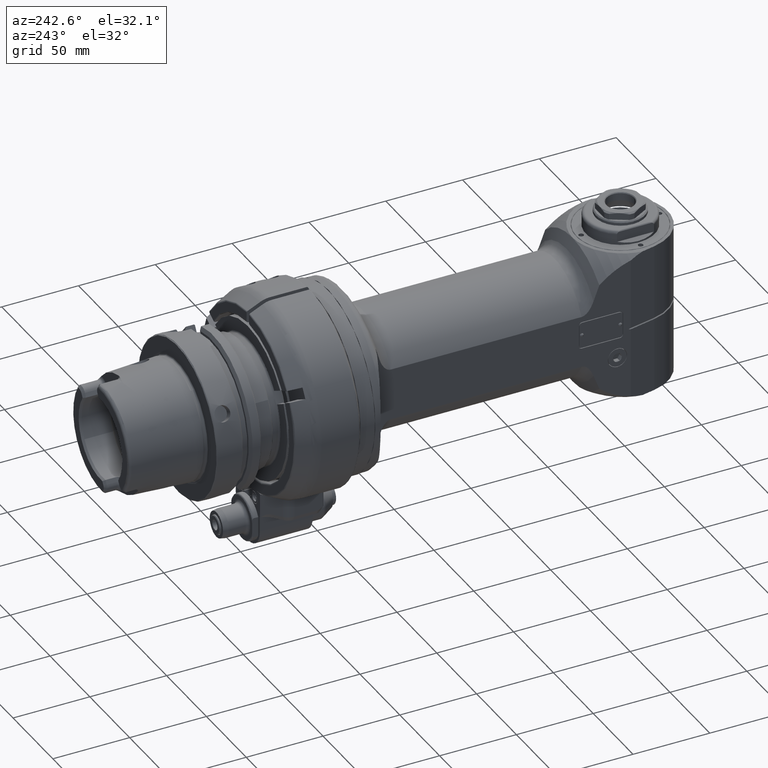
[diagram: clean part render]
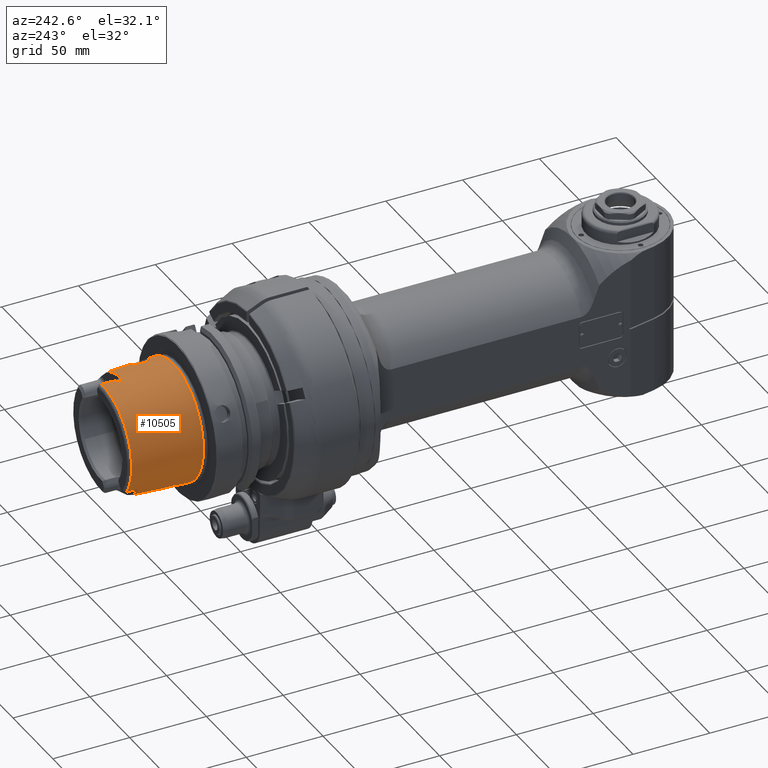
[diagram: same view with one face highlighted and labeled with its STEP entity id]
A machine part, auxiliary view. The second image highlights one B-rep face of the part: STEP entity #10505.
In plain terms, the highlighted conical surface has half-angle 2.868 deg.
Its self-contained STEP definition (entity closure, byte-faithful):
#96=CONICAL_SURFACE('',#11436,36.74017294717,0.0500570901447486);
#289=B_SPLINE_CURVE_WITH_KNOTS('',3,(#31290,#31291,#31292,#31293,#31294,
#31295,#31296,#31297,#31298,#31299,#31300,#31301,#31302,#31303,#31304,#31305,
#31306,#31307),.UNSPECIFIED.,.F.,.F.,(4,2,2,2,2,2,2,2,4),(1.95351747682929,
1.96415168074759,1.97478588466589,1.99605429250249,2.07500752136716,2.15396075023182,
2.37309502639736,2.5922293025629,2.83524321354945),.UNSPECIFIED.);
#290=B_SPLINE_CURVE_WITH_KNOTS('',3,(#31313,#31314,#31315,#31316,#31317,
#31318,#31319,#31320,#31321,#31322,#31323,#31324,#31325,#31326,#31327,#31328,
#31329,#31330,#31331),.UNSPECIFIED.,.F.,.F.,(4,2,2,2,2,2,3,2,4),(0.880850159135021,
1.06197193937717,1.12429506029204,1.14773343290938,1.16113788293459,1.16784010794719,
1.1745423329598,1.1812615850908,1.18523491439442),.UNSPECIFIED.);
#291=B_SPLINE_CURVE_WITH_KNOTS('',3,(#31333,#31334,#31335,#31336,#31337,
#31338,#31339,#31340,#31341,#31342,#31343,#31344),.UNSPECIFIED.,.F.,.F.,
(4,2,2,2,2,4),(-2.21811633364772,-2.19053511535296,-2.02523452835063,-1.9375169475588,
-1.89629131750475,-1.88277978154764),.UNSPECIFIED.);
#292=B_SPLINE_CURVE_WITH_KNOTS('',3,(#31348,#31349,#31350,#31351,#31352,
#31353,#31354,#31355,#31356,#31357),.UNSPECIFIED.,.F.,.F.,(4,2,2,2,4),(-0.968342178380193,
-0.916829721728276,-0.81436746422335,-0.475336799953219,-0.355883563659341),
 .UNSPECIFIED.);
#293=B_SPLINE_CURVE_WITH_KNOTS('',3,(#31359,#31360,#31361,#31362,#31363,
#31364,#31365,#31366,#31367,#31368,#31369,#31370,#31371,#31372,#31373,#31374,
#31375,#31376),.UNSPECIFIED.,.F.,.F.,(4,2,2,2,2,2,2,2,4),(0.576465429523074,
0.580438758827661,0.587158010958199,0.593860235970344,0.60056246098249,
0.613966911006781,0.63740528362252,0.699728404533146,0.880850184762865),
 .UNSPECIFIED.);
#294=B_SPLINE_CURVE_WITH_KNOTS('',3,(#31382,#31383,#31384,#31385,#31386,
#31387,#31388,#31389,#31390,#31391,#31392,#31393,#31394,#31395,#31396,#31397,
#31398,#31399),.UNSPECIFIED.,.F.,.F.,(4,2,2,2,2,2,2,2,4),(1.071791743786,
1.31480565477962,1.53393993093783,1.75307420709605,1.83202743595779,1.91098066481953,
1.93224907265521,1.94288327657306,1.9535174804909),.UNSPECIFIED.);
#295=B_SPLINE_CURVE_WITH_KNOTS('',3,(#31403,#31404,#31405,#31406,#31407,
#31408,#31409,#31410),.UNSPECIFIED.,.F.,.F.,(4,2,2,4),(2.25015551691678,
2.37309502742218,2.59222930313796,2.83524321369891),.UNSPECIFIED.);
#296=B_SPLINE_CURVE_WITH_KNOTS('',3,(#31412,#31413,#31414,#31415,#31416,
#31417,#31418,#31419,#31420,#31421,#31422,#31423,#31424,#31425),
 .UNSPECIFIED.,.F.,.F.,(4,2,2,2,2,2,4),(-1.15970822158214,-0.994679561113807,
-0.847374258154563,-0.791109244943153,-0.759580173348406,-0.73217229522712,
-0.711766951874965),.UNSPECIFIED.);
#297=B_SPLINE_CURVE_WITH_KNOTS('',3,(#31429,#31430,#31431,#31432,#31433,
#31434,#31435,#31436,#31437,#31438,#31439,#31440,#31441,#31442),
 .UNSPECIFIED.,.F.,.F.,(4,2,2,2,2,2,4),(0.375270817781807,0.48788984865174,
0.726748246761294,0.802983637328384,0.853770881530642,0.898553991922293,
0.929951198099741),.UNSPECIFIED.);
#298=B_SPLINE_CURVE_WITH_KNOTS('',3,(#31444,#31445,#31446,#31447,#31448,
#31449,#31450,#31451),.UNSPECIFIED.,.F.,.F.,(4,2,2,4),(1.07179174373337,
1.31480565427248,1.53393992998456,1.65687944051733),.UNSPECIFIED.);
#299=B_SPLINE_CURVE_WITH_KNOTS('',3,(#31454,#31455,#31456,#31457,#31458,
#31459,#31460,#31461,#31462,#31463,#31464,#31465,#31466,#31467,#31468,#31469,
#31470,#31471,#31472,#31473,#31474,#31475,#31476,#31477,#31478,#31479,#31480,
#31481,#31482,#31483,#31484,#31485,#31486,#31487),.UNSPECIFIED.,.T.,.F.,
(4,2,2,2,2,2,2,2,2,2,2,2,2,2,2,2,4),(-3.62526048863598,-3.4004530432976,
-3.17564559795922,-2.95051015909361,-2.72537472022801,-2.5002392813624,
-2.27510384249679,-2.05029639715841,-1.82548895182003,-1.59713724610656,
-1.36878554039308,-1.14076500815155,-0.912744475910015,-0.684723943668482,
-0.456703411426949,-0.228351705713474,0.),.UNSPECIFIED.);
#300=B_SPLINE_CURVE_WITH_KNOTS('',3,(#31490,#31491,#31492,#31493,#31494,
#31495,#31496,#31497,#31498,#31499,#31500,#31501,#31502,#31503,#31504,#31505,
#31506,#31507),.UNSPECIFIED.,.F.,.F.,(4,2,2,2,2,2,2,2,4),(-3.62042001085126,
-3.3969087829225,-3.16855707720903,-2.9405365449675,-2.71251601272596,-2.48449548048443,
-2.2564749482429,-2.02812324252942,-1.80461203294813),.UNSPECIFIED.);
#301=B_SPLINE_CURVE_WITH_KNOTS('',3,(#31508,#31509,#31510,#31511,#31512,
#31513,#31514,#31515,#31516,#31517,#31518,#31519,#31520,#31521,#31522,#31523,
#31524,#31525,#31526,#31527,#31528,#31529,#31530),.UNSPECIFIED.,.F.,.F.,
(4,2,2,2,2,2,2,2,2,3,4),(-1.80461203294813,-1.79977153681595,-1.57496409147757,
-1.35015664613919,-1.12502120727358,-0.899885768407974,-0.674750329542366,
-0.449614890676758,-0.224807445338379,0.,0.00484047778471908),
 .UNSPECIFIED.);
#637=FACE_BOUND('',#2194,.T.);
#638=FACE_BOUND('',#2195,.T.);
#931=CIRCLE('',#11434,37.88261919706);
#932=CIRCLE('',#11435,37.88261919706);
#933=CIRCLE('',#11437,35.59772669727);
#934=CIRCLE('',#11438,36.25402645881);
#935=CIRCLE('',#11439,35.59772669727);
#936=CIRCLE('',#11440,36.00353175058);
#937=CIRCLE('',#11441,35.59772669727);
#1519=FACE_OUTER_BOUND('',#2193,.T.);
#2193=EDGE_LOOP('',(#8163,#8164,#8165,#8166,#8167,#8168,#8169,#8170,#8171,
#8172,#8173,#8174,#8175,#8176,#8177,#8178,#8179,#8180,#8181,#8182,#8183));
#2194=EDGE_LOOP('',(#8184));
#2195=EDGE_LOOP('',(#8185,#8186));
#2683=(
BOUNDED_CURVE()
B_SPLINE_CURVE(2,(#31309,#31310,#31311),.UNSPECIFIED.,.F.,.F.)
B_SPLINE_CURVE_WITH_KNOTS((3,3),(2.97141344392928,3.96265835988476),
 .UNSPECIFIED.)
CURVE()
GEOMETRIC_REPRESENTATION_ITEM()
RATIONAL_B_SPLINE_CURVE((1.02464110441185,1.02628589834782,1.02628589827356))
REPRESENTATION_ITEM('')
);
#2684=(
BOUNDED_CURVE()
B_SPLINE_CURVE(2,(#31378,#31379,#31380),.UNSPECIFIED.,.F.,.F.)
B_SPLINE_CURVE_WITH_KNOTS((3,3),(3.9626582701882,4.95390318622074),
 .UNSPECIFIED.)
CURVE()
GEOMETRIC_REPRESENTATION_ITEM()
RATIONAL_B_SPLINE_CURVE((1.02628589827313,1.02628589834765,1.02464110441169))
REPRESENTATION_ITEM('')
);
#3130=LINE('',#31286,#3797);
#3797=VECTOR('',#13490,36.74017294717);
#4611=VERTEX_POINT('',#31279);
#4612=VERTEX_POINT('',#31280);
#4613=VERTEX_POINT('',#31285);
#4614=VERTEX_POINT('',#31287);
#4615=VERTEX_POINT('',#31289);
#4616=VERTEX_POINT('',#31308);
#4617=VERTEX_POINT('',#31312);
#4618=VERTEX_POINT('',#31332);
#4619=VERTEX_POINT('',#31345);
#4620=VERTEX_POINT('',#31347);
#4621=VERTEX_POINT('',#31358);
#4622=VERTEX_POINT('',#31377);
#4623=VERTEX_POINT('',#31381);
#4624=VERTEX_POINT('',#31400);
#4625=VERTEX_POINT('',#31402);
#4626=VERTEX_POINT('',#31411);
#4627=VERTEX_POINT('',#31426);
#4628=VERTEX_POINT('',#31428);
#4629=VERTEX_POINT('',#31443);
#4630=VERTEX_POINT('',#31453);
#4631=VERTEX_POINT('',#31488);
#4632=VERTEX_POINT('',#31489);
#5895=EDGE_CURVE('',#4611,#4612,#931,.T.);
#5897=EDGE_CURVE('',#4612,#4611,#932,.T.);
#5898=EDGE_CURVE('',#4611,#4613,#3130,.T.);
#5899=EDGE_CURVE('',#4614,#4613,#933,.T.);
#5900=EDGE_CURVE('',#4615,#4614,#289,.T.);
#5901=EDGE_CURVE('',#4616,#4615,#2683,.T.);
#5902=EDGE_CURVE('',#4617,#4616,#290,.T.);
#5903=EDGE_CURVE('',#4618,#4617,#291,.T.);
#5904=EDGE_CURVE('',#4619,#4618,#934,.T.);
#5905=EDGE_CURVE('',#4620,#4619,#292,.T.);
#5906=EDGE_CURVE('',#4621,#4620,#293,.T.);
#5907=EDGE_CURVE('',#4622,#4621,#2684,.T.);
#5908=EDGE_CURVE('',#4623,#4622,#294,.T.);
#5909=EDGE_CURVE('',#4624,#4623,#935,.T.);
#5910=EDGE_CURVE('',#4625,#4624,#295,.T.);
#5911=EDGE_CURVE('',#4626,#4625,#296,.T.);
#5912=EDGE_CURVE('',#4627,#4626,#936,.T.);
#5913=EDGE_CURVE('',#4627,#4628,#297,.T.);
#5914=EDGE_CURVE('',#4629,#4628,#298,.T.);
#5915=EDGE_CURVE('',#4613,#4629,#937,.T.);
#5916=EDGE_CURVE('',#4630,#4630,#299,.T.);
#5917=EDGE_CURVE('',#4631,#4632,#300,.T.);
#5918=EDGE_CURVE('',#4632,#4631,#301,.T.);
#8163=ORIENTED_EDGE('',*,*,#5895,.F.);
#8164=ORIENTED_EDGE('',*,*,#5898,.T.);
#8165=ORIENTED_EDGE('',*,*,#5899,.F.);
#8166=ORIENTED_EDGE('',*,*,#5900,.F.);
#8167=ORIENTED_EDGE('',*,*,#5901,.F.);
#8168=ORIENTED_EDGE('',*,*,#5902,.F.);
#8169=ORIENTED_EDGE('',*,*,#5903,.F.);
#8170=ORIENTED_EDGE('',*,*,#5904,.F.);
#8171=ORIENTED_EDGE('',*,*,#5905,.F.);
#8172=ORIENTED_EDGE('',*,*,#5906,.F.);
#8173=ORIENTED_EDGE('',*,*,#5907,.F.);
#8174=ORIENTED_EDGE('',*,*,#5908,.F.);
#8175=ORIENTED_EDGE('',*,*,#5909,.F.);
#8176=ORIENTED_EDGE('',*,*,#5910,.F.);
#8177=ORIENTED_EDGE('',*,*,#5911,.F.);
#8178=ORIENTED_EDGE('',*,*,#5912,.F.);
#8179=ORIENTED_EDGE('',*,*,#5913,.T.);
#8180=ORIENTED_EDGE('',*,*,#5914,.F.);
#8181=ORIENTED_EDGE('',*,*,#5915,.F.);
#8182=ORIENTED_EDGE('',*,*,#5898,.F.);
#8183=ORIENTED_EDGE('',*,*,#5897,.F.);
#8184=ORIENTED_EDGE('',*,*,#5916,.T.);
#8185=ORIENTED_EDGE('',*,*,#5917,.T.);
#8186=ORIENTED_EDGE('',*,*,#5918,.T.);
#10505=ADVANCED_FACE('',(#1519,#637,#638),#96,.T.);
#11434=AXIS2_PLACEMENT_3D('',#31281,#13483,#13484);
#11435=AXIS2_PLACEMENT_3D('',#31283,#13486,#13487);
#11436=AXIS2_PLACEMENT_3D('',#31284,#13488,#13489);
#11437=AXIS2_PLACEMENT_3D('',#31288,#13491,#13492);
#11438=AXIS2_PLACEMENT_3D('',#31346,#13493,#13494);
#11439=AXIS2_PLACEMENT_3D('',#31401,#13495,#13496);
#11440=AXIS2_PLACEMENT_3D('',#31427,#13497,#13498);
#11441=AXIS2_PLACEMENT_3D('',#31452,#13499,#13500);
#13483=DIRECTION('center_axis',(-1.54070515829829E-13,-1.,8.86354511194037E-14));
#13484=DIRECTION('ref_axis',(0.565286898981988,-1.60208928738564E-13,-0.824894370110093));
#13486=DIRECTION('center_axis',(-1.54070515829829E-13,-1.,8.86354511194037E-14));
#13487=DIRECTION('ref_axis',(0.565286898981988,-1.60208928738564E-13,-0.824894370110093));
#13488=DIRECTION('center_axis',(-1.54070515829829E-13,-1.,8.86354511194037E-14));
#13489=DIRECTION('ref_axis',(-0.565286898981988,1.60208928738564E-13,0.824894370110093));
#13490=DIRECTION('',(-0.0282848015434069,0.998747405449362,0.0412745697714427));
#13491=DIRECTION('center_axis',(1.54070515829829E-13,1.,-8.86354511194037E-14));
#13492=DIRECTION('ref_axis',(0.819766675702152,-7.55405600929713E-14,0.572697649207889));
#13493=DIRECTION('center_axis',(1.54070515829829E-13,1.,-8.86354511194037E-14));
#13494=DIRECTION('ref_axis',(0.162272191643253,6.24593196017472E-14,0.986746034103657));
#13495=DIRECTION('center_axis',(1.54070515829829E-13,1.,-8.86354511194037E-14));
#13496=DIRECTION('ref_axis',(-0.819766675701744,7.55405600928566E-14,-0.572697649208474));
#13497=DIRECTION('center_axis',(1.54070515829829E-13,1.,-8.86354511194037E-14));
#13498=DIRECTION('ref_axis',(-0.170475599937021,-6.10727327172281E-14,-0.985361897896459));
#13499=DIRECTION('center_axis',(1.54070515829829E-13,1.,-8.86354511194037E-14));
#13500=DIRECTION('ref_axis',(0.819766675702152,-7.55405600929713E-14,0.572697649207889));
#31279=CARTESIAN_POINT('',(21.4145483312309,90.9924719713397,-31.2491593006898));
#31280=CARTESIAN_POINT('',(-21.4145483312134,90.9924719713555,31.2491593006758));
#31281=CARTESIAN_POINT('Origin',(9.4087411738578E-12,90.99247197135,-5.42941796712916E-12));
#31283=CARTESIAN_POINT('Origin',(9.4087411738578E-12,90.99247197135,-5.42941796712916E-12));
#31284=CARTESIAN_POINT('Origin',(1.29221344161242E-11,113.79627205827,-7.45064307507984E-12));
#31285=CARTESIAN_POINT('',(20.1229285355274,136.600072145196,-29.3643643413095));
#31286=CARTESIAN_POINT('',(20.7687384333806,113.796272058264,-30.3067618209991));
#31287=CARTESIAN_POINT('',(29.1818300771966,136.600072145196,20.3867343966669));
#31288=CARTESIAN_POINT('Origin',(1.6424848596736E-11,136.6000721452,-9.46570262389392E-12));
#31289=CARTESIAN_POINT('',(30.7431082032181,127.809422211486,18.8044685276452));
#31290=CARTESIAN_POINT('Ctrl Pts',(30.7431081936557,127.809422211538,18.8044685432964));
#31291=CARTESIAN_POINT('Ctrl Pts',(30.7246119918812,127.809422209239,18.8347076716088));
#31292=CARTESIAN_POINT('Ctrl Pts',(30.7061778234111,127.81616484918,18.8640966004879));
#31293=CARTESIAN_POINT('Ctrl Pts',(30.6702101398432,127.840529313851,18.9201939447219));
#31294=CARTESIAN_POINT('Ctrl Pts',(30.6526824725821,127.85819228069,18.9468882328889));
#31295=CARTESIAN_POINT('Ctrl Pts',(30.6023448355023,127.921685828009,19.0221340893101));
#31296=CARTESIAN_POINT('Ctrl Pts',(30.5718253650961,127.978559664047,19.0657151168882));
#31297=CARTESIAN_POINT('Ctrl Pts',(30.4508192300694,128.240236572277,19.2344957243158));
#31298=CARTESIAN_POINT('Ctrl Pts',(30.3794080553848,128.499440397578,19.3224801607254));
#31299=CARTESIAN_POINT('Ctrl Pts',(30.2472614813869,129.032137222438,19.479446751041));
#31300=CARTESIAN_POINT('Ctrl Pts',(30.1896477370089,129.307964173428,19.5430662345673));
#31301=CARTESIAN_POINT('Ctrl Pts',(30.0033426579084,130.263520190317,19.7417966698982));
#31302=CARTESIAN_POINT('Ctrl Pts',(29.8896360837378,130.990974314662,19.8472214170619));
#31303=CARTESIAN_POINT('Ctrl Pts',(29.6752091785505,132.476695914275,20.0336943061763));
#31304=CARTESIAN_POINT('Ctrl Pts',(29.5761550135734,133.235552124774,20.1119530253636));
#31305=CARTESIAN_POINT('Ctrl Pts',(29.3765495633445,134.859161011638,20.2595349502501));
#31306=CARTESIAN_POINT('Ctrl Pts',(29.2772373006642,135.726206197612,20.3266120906752));
#31307=CARTESIAN_POINT('Ctrl Pts',(29.1818300772039,136.600072145198,20.3867343966528));
#31308=CARTESIAN_POINT('',(32.2511355636846,125.499999769316,16.3390200293981));
#31309=CARTESIAN_POINT('Ctrl Pts',(32.2511355637039,125.499999769345,16.3390200293656));
#31310=CARTESIAN_POINT('Ctrl Pts',(31.4959134511014,127.809422315507,17.5737199242038));
#31311=CARTESIAN_POINT('Ctrl Pts',(30.743108203186,127.809422211409,18.8044685277279));
#31312=CARTESIAN_POINT('',(30.8747292113536,124.729703023806,18.8849764257005));
#31313=CARTESIAN_POINT('Ctrl Pts',(30.8747292783561,124.72970302379,18.8849763161548));
#31314=CARTESIAN_POINT('Ctrl Pts',(31.189756609465,124.729703017958,18.3699434502233));
#31315=CARTESIAN_POINT('Ctrl Pts',(31.5484471054144,124.773514088108,17.7420077345428));
#31316=CARTESIAN_POINT('Ctrl Pts',(31.9204847454606,124.929572160144,17.0379207494847));
#31317=CARTESIAN_POINT('Ctrl Pts',(32.0310053395963,124.989438499556,16.8226349932377));
#31318=CARTESIAN_POINT('Ctrl Pts',(32.147731746669,125.098596759152,16.5856075458085));
#31319=CARTESIAN_POINT('Ctrl Pts',(32.1843829448975,125.139846228574,16.5098125118391));
#31320=CARTESIAN_POINT('Ctrl Pts',(32.2270215998544,125.210144190517,16.4185859188438));
#31321=CARTESIAN_POINT('Ctrl Pts',(32.2426746268878,125.241559315834,16.3843343988));
#31322=CARTESIAN_POINT('Ctrl Pts',(32.2593870210592,125.296112672697,16.3453408947717));
#31323=CARTESIAN_POINT('Ctrl Pts',(32.2638557178817,125.315515882415,16.3343621513942));
#31324=CARTESIAN_POINT('Ctrl Pts',(32.2694548125403,125.356433783244,16.3187560832275));
#31325=CARTESIAN_POINT('Ctrl Pts',(32.270594339227,125.377940962666,16.3141123451452));
#31326=CARTESIAN_POINT('Ctrl Pts',(32.2695967283712,125.400253727865,16.3136080118377));
#31327=CARTESIAN_POINT('Ctrl Pts',(32.2685965830678,125.42262317903,16.3131023972627));
#31328=CARTESIAN_POINT('Ctrl Pts',(32.2655226345067,125.444184722424,16.316790070759));
#31329=CARTESIAN_POINT('Ctrl Pts',(32.2581441686728,125.47684805453,16.3277477959236));
#31330=CARTESIAN_POINT('Ctrl Pts',(32.2548555119101,125.488624397515,16.3329383487943));
#31331=CARTESIAN_POINT('Ctrl Pts',(32.2511355636779,125.499999769301,16.3390200294218));
#31332=CARTESIAN_POINT('',(28.0392641915388,123.499999769226,22.9816034704772));
#31333=CARTESIAN_POINT('Ctrl Pts',(28.0392641915367,123.499999769227,22.9816034704755));
#31334=CARTESIAN_POINT('Ctrl Pts',(28.1438281840088,123.499999769227,22.8540276286239));
#31335=CARTESIAN_POINT('Ctrl Pts',(28.2525006270047,123.507882139708,22.7190461898865));
#31336=CARTESIAN_POINT('Ctrl Pts',(29.0395650999302,123.626826182294,21.7206019382224));
#31337=CARTESIAN_POINT('Ctrl Pts',(29.6018607503996,124.017364097836,20.9005947173252));
#31338=CARTESIAN_POINT('Ctrl Pts',(30.2611275175359,124.479220507163,19.8806717603782));
#31339=CARTESIAN_POINT('Ctrl Pts',(30.4284714496417,124.593921238398,19.6106749184146));
#31340=CARTESIAN_POINT('Ctrl Pts',(30.6558452723224,124.69353783573,19.2421595981162));
#31341=CARTESIAN_POINT('Ctrl Pts',(30.7284004701681,124.716189781852,19.1239571383401));
#31342=CARTESIAN_POINT('Ctrl Pts',(30.8266958083141,124.728227310286,18.9634799925679));
#31343=CARTESIAN_POINT('Ctrl Pts',(30.8507460482472,124.729703024248,18.9241860942189));
#31344=CARTESIAN_POINT('Ctrl Pts',(30.8747292113511,124.729703023803,18.8849764256989));
#31345=CARTESIAN_POINT('',(5.88302032938107,123.49999976922,35.773516828514));
#31346=CARTESIAN_POINT('Origin',(1.44171927500273E-11,123.49999976923,-8.31073735827493E-12));
#31347=CARTESIAN_POINT('',(0.917504728849661,124.729703023812,36.1807880448374));
#31348=CARTESIAN_POINT('Ctrl Pts',(0.917504728849395,124.729703023848,36.180788044827));
#31349=CARTESIAN_POINT('Ctrl Pts',(1.01959015715883,124.729703024834,36.178199271335));
#31350=CARTESIAN_POINT('Ctrl Pts',(1.11930282067225,124.722421490772,36.1756105678273));
#31351=CARTESIAN_POINT('Ctrl Pts',(1.41802512999955,124.681972463989,36.1675694681709));
#31352=CARTESIAN_POINT('Ctrl Pts',(1.61921563229364,124.63025612685,36.1618317641309));
#31353=CARTESIAN_POINT('Ctrl Pts',(2.56315919758353,124.327192910816,36.1290390369334));
#31354=CARTESIAN_POINT('Ctrl Pts',(3.47994622488196,123.893492596943,36.0824314980277));
#31355=CARTESIAN_POINT('Ctrl Pts',(4.90595691187485,123.576543229189,35.9186278479902));
#31356=CARTESIAN_POINT('Ctrl Pts',(5.37703664659847,123.499999769222,35.8567267714038));
#31357=CARTESIAN_POINT('Ctrl Pts',(5.88302032938164,123.499999769223,35.7735168285175));
#31358=CARTESIAN_POINT('',(-1.97556136323003,125.499999769313,36.0998127137404));
#31359=CARTESIAN_POINT('Ctrl Pts',(-1.97556136321115,125.499999769301,36.0998127137447));
#31360=CARTESIAN_POINT('Ctrl Pts',(-1.98268822725079,125.488624397512,36.0999934431008));
#31361=CARTESIAN_POINT('Ctrl Pts',(-1.98882770627985,125.476848054524,36.1002462269663));
#31362=CARTESIAN_POINT('Ctrl Pts',(-2.00200660755784,125.444184722417,36.1011573032373));
#31363=CARTESIAN_POINT('Ctrl Pts',(-2.00673720076674,125.422623179024,36.101975584033));
#31364=CARTESIAN_POINT('Ctrl Pts',(-2.0068614383236,125.377940962663,36.1042106655585));
#31365=CARTESIAN_POINT('Ctrl Pts',(-2.00227007983271,125.356433783242,36.1055456755406));
#31366=CARTESIAN_POINT('Ctrl Pts',(-1.98595528101886,125.315515882415,36.1084997514112));
#31367=CARTESIAN_POINT('Ctrl Pts',(-1.97421306194172,125.296112672699,36.1101191181297));
#31368=CARTESIAN_POINT('Ctrl Pts',(-1.93208749978742,125.241559315838,36.1151425122329));
#31369=CARTESIAN_POINT('Ctrl Pts',(-1.89459829979679,125.210144190523,36.1187123531974));
#31370=CARTESIAN_POINT('Ctrl Pts',(-1.79427442528953,125.139846228585,36.1273994913182));
#31371=CARTESIAN_POINT('Ctrl Pts',(-1.71030840128202,125.098596759165,36.1335561395572));
#31372=CARTESIAN_POINT('Ctrl Pts',(-1.4466734068931,124.989438499575,36.1509818294522));
#31373=CARTESIAN_POINT('Ctrl Pts',(-1.20497017585638,124.929572160167,36.1629110654113));
#31374=CARTESIAN_POINT('Ctrl Pts',(-0.409194140345572,124.773514088139,
36.1927605104921));
#31375=CARTESIAN_POINT('Ctrl Pts',(0.313959389247763,124.729703023824,36.1960932843093));
#31376=CARTESIAN_POINT('Ctrl Pts',(0.917504600509041,124.729703023824,36.1807880480827));
#31377=CARTESIAN_POINT('',(0.913593348480955,127.809422211222,36.02654695909));
#31378=CARTESIAN_POINT('Ctrl Pts',(0.913593348568326,127.809422211043,36.0265469591065));
#31379=CARTESIAN_POINT('Ctrl Pts',(-0.528668831836119,127.809422315502,
36.0631211261446));
#31380=CARTESIAN_POINT('Ctrl Pts',(-1.97556136324033,125.499999769325,36.0998127137419));
#31381=CARTESIAN_POINT('',(3.06451484915552,136.600072145201,35.4655733740875));
#31382=CARTESIAN_POINT('Ctrl Pts',(3.06451484914387,136.600072145202,35.4655733740864));
#31383=CARTESIAN_POINT('Ctrl Pts',(2.96474379309674,135.726206197541,35.5181373003232));
#31384=CARTESIAN_POINT('Ctrl Pts',(2.85699715412818,134.859161011493,35.5706056725036));
#31385=CARTESIAN_POINT('Ctrl Pts',(2.62938473291251,133.235552124539,35.6696781006978));
#31386=CARTESIAN_POINT('Ctrl Pts',(2.51208361153882,132.476695914022,35.716332164326));
#31387=CARTESIAN_POINT('Ctrl Pts',(2.24337989985161,130.990974314376,35.8087948669179));
#31388=CARTESIAN_POINT('Ctrl Pts',(2.09522610353301,130.263520190014,35.8545552751461));
#31389=CARTESIAN_POINT('Ctrl Pts',(1.82996795847721,129.307964173104,35.9165349888369));
#31390=CARTESIAN_POINT('Ctrl Pts',(1.74606499737785,129.032137222109,35.9346202133126));
#31391=CARTESIAN_POINT('Ctrl Pts',(1.54405465561755,128.499440397238,35.9705792082606));
#31392=CARTESIAN_POINT('Ctrl Pts',(1.43215231120549,128.240236571932,35.988430881447));
#31393=CARTESIAN_POINT('Ctrl Pts',(1.22548094999042,127.978559663697,36.0088349646803));
#31394=CARTESIAN_POINT('Ctrl Pts',(1.17247893778096,127.921685827659,36.0134750875732));
#31395=CARTESIAN_POINT('Ctrl Pts',(1.08214529604966,127.85819228034,36.0194458318401));
#31396=CARTESIAN_POINT('Ctrl Pts',(1.0502635307302,127.8405293135,36.0212780928738));
#31397=CARTESIAN_POINT('Ctrl Pts',(0.983697963753987,127.816164848829,36.0243783484419));
#31398=CARTESIAN_POINT('Ctrl Pts',(0.949029320515734,127.809422211187,36.0256483420618));
#31399=CARTESIAN_POINT('Ctrl Pts',(0.913593366324641,127.809422211187,36.026546958649));
#31400=CARTESIAN_POINT('',(-29.1818300771482,136.600072145204,-20.386734396699));
#31401=CARTESIAN_POINT('Origin',(1.6424848596736E-11,136.6000721452,-9.46570262389392E-12));
#31402=CARTESIAN_POINT('',(-29.9724470241015,130.499999769224,-19.766178238905));
#31403=CARTESIAN_POINT('Ctrl Pts',(-29.9724470241048,130.499999769224,-19.7661782389098));
#31404=CARTESIAN_POINT('Ctrl Pts',(-29.9052931061958,130.905389533897,-19.831116688207));
#31405=CARTESIAN_POINT('Ctrl Pts',(-29.8425719133208,131.317072638544,-19.8881500115119));
#31406=CARTESIAN_POINT('Ctrl Pts',(-29.6752091785611,132.47669591337,-20.0336943062135));
#31407=CARTESIAN_POINT('Ctrl Pts',(-29.5761550135819,133.23555212389,-20.1119530254019));
#31408=CARTESIAN_POINT('Ctrl Pts',(-29.376549563317,134.859161011057,-20.2595349503138));
#31409=CARTESIAN_POINT('Ctrl Pts',(-29.2772373006063,135.72620619732,-20.3266120907567));
#31410=CARTESIAN_POINT('Ctrl Pts',(-29.1818300771175,136.600072145197,-20.3867343967488));
#31411=CARTESIAN_POINT('',(-27.6546956542937,128.499999769224,-23.0536788123447));
#31412=CARTESIAN_POINT('Ctrl Pts',(-27.6546956542952,128.499999769233,-23.053678812346));
#31413=CARTESIAN_POINT('Ctrl Pts',(-28.1092935971227,128.499999769232,-22.5083529293793));
#31414=CARTESIAN_POINT('Ctrl Pts',(-28.5371327944792,128.66245507614,-21.9479713285489));
#31415=CARTESIAN_POINT('Ctrl Pts',(-29.2425404921779,129.130467164677,-20.956713608188));
#31416=CARTESIAN_POINT('Ctrl Pts',(-29.5123333009925,129.405716766415,-20.5456185408378));
#31417=CARTESIAN_POINT('Ctrl Pts',(-29.7583790496515,129.739181715366,-20.1554692143073));
#31418=CARTESIAN_POINT('Ctrl Pts',(-29.8417809263964,129.865647768697,-20.0203456563792));
#31419=CARTESIAN_POINT('Ctrl Pts',(-29.9340885724412,130.079762301521,-19.8624330277699));
#31420=CARTESIAN_POINT('Ctrl Pts',(-29.9547091101504,130.148128299852,-19.8250264882687));
#31421=CARTESIAN_POINT('Ctrl Pts',(-29.9779651023328,130.26410645828,-19.7792897847913));
#31422=CARTESIAN_POINT('Ctrl Pts',(-29.9837744221724,130.319541365582,-19.7654227256005));
#31423=CARTESIAN_POINT('Ctrl Pts',(-29.9828911431459,130.41906147484,-19.7577026725219));
#31424=CARTESIAN_POINT('Ctrl Pts',(-29.9790565850787,130.460099664329,-19.7597867333437));
#31425=CARTESIAN_POINT('Ctrl Pts',(-29.9724470241032,130.499999769223,-19.7661782389123));
#31426=CARTESIAN_POINT('',(-6.13772367504138,128.49999976923,-35.4765083767238));
#31427=CARTESIAN_POINT('Origin',(1.51786646259787E-11,128.49999976923,-8.74878733749241E-12));
#31428=CARTESIAN_POINT('',(-2.13178897851155,130.499999769229,-35.8399896559319));
#31429=CARTESIAN_POINT('Ctrl Pts',(-6.13772367504248,128.499999769227,-35.4765083767301));
#31430=CARTESIAN_POINT('Ctrl Pts',(-5.71437657239548,128.499999769225,-35.5497508589692));
#31431=CARTESIAN_POINT('Ctrl Pts',(-5.28907367034633,128.559942109878,-35.6123029825912));
#31432=CARTESIAN_POINT('Ctrl Pts',(-4.00316248629219,128.879875639772,-35.7719762850094));
#31433=CARTESIAN_POINT('Ctrl Pts',(-3.24274820021395,129.27375250041,-35.8212747023562));
#31434=CARTESIAN_POINT('Ctrl Pts',(-2.63179780932405,129.695106132274,-35.8474834256617));
#31435=CARTESIAN_POINT('Ctrl Pts',(-2.4726138997989,129.818351634399,-35.8525305934852));
#31436=CARTESIAN_POINT('Ctrl Pts',(-2.26805179014054,130.033791013333,-35.8551209525408));
#31437=CARTESIAN_POINT('Ctrl Pts',(-2.21477923868412,130.109439468393,-35.8545774022719));
#31438=CARTESIAN_POINT('Ctrl Pts',(-2.14971817939398,130.236036791192,-35.8521795956072));
#31439=CARTESIAN_POINT('Ctrl Pts',(-2.12880654831104,130.298635560469,-35.8502733066251));
#31440=CARTESIAN_POINT('Ctrl Pts',(-2.11862338870078,130.410677337218,-35.8452533288204));
#31441=CARTESIAN_POINT('Ctrl Pts',(-2.12197706593052,130.455712786099,-35.8427959281251));
#31442=CARTESIAN_POINT('Ctrl Pts',(-2.1317889785062,130.49999976923,-35.8399896559325));
#31443=CARTESIAN_POINT('',(-3.0645148491951,136.600072145199,-35.4655733740919));
#31444=CARTESIAN_POINT('Ctrl Pts',(-3.06451484919693,136.600072145199,-35.4655733740978));
#31445=CARTESIAN_POINT('Ctrl Pts',(-2.96474379313615,135.726206197401,-35.5181373003428));
#31446=CARTESIAN_POINT('Ctrl Pts',(-2.85699715415186,134.859161011217,-35.5706056725314));
#31447=CARTESIAN_POINT('Ctrl Pts',(-2.629384732917,133.235552124141,-35.6696781007332));
#31448=CARTESIAN_POINT('Ctrl Pts',(-2.51208361154371,132.476695913633,-35.7163321643609));
#31449=CARTESIAN_POINT('Ctrl Pts',(-2.30235718756045,131.317072638727,-35.7885003969638));
#31450=CARTESIAN_POINT('Ctrl Pts',(-2.22160428425901,130.90538953399,-35.8143018817026));
#31451=CARTESIAN_POINT('Ctrl Pts',(-2.13178897850585,130.49999976923,-35.8399896559325));
#31452=CARTESIAN_POINT('Origin',(1.6424848596736E-11,136.6000721452,-9.46570262389392E-12));
#31453=CARTESIAN_POINT('',(-23.5809880853403,103.499999932658,-28.8434919063922));
#31454=CARTESIAN_POINT('Ctrl Pts',(-13.1876477885436,103.548409733883,-34.8412854083025));
#31455=CARTESIAN_POINT('Ctrl Pts',(-13.1743746698881,104.296829243074,-34.8062183119755));
#31456=CARTESIAN_POINT('Ctrl Pts',(-13.3016149104242,105.094788537267,-34.7163374423954));
#31457=CARTESIAN_POINT('Ctrl Pts',(-13.845631772121,106.561325495433,-34.4238016506038));
#31458=CARTESIAN_POINT('Ctrl Pts',(-14.2617105042765,107.229929927848,-34.219984658845));
#31459=CARTESIAN_POINT('Ctrl Pts',(-15.2168221849321,108.285637814296,-33.7481039384799));
#31460=CARTESIAN_POINT('Ctrl Pts',(-15.8201077669552,108.743409755206,-33.448056962753));
#31461=CARTESIAN_POINT('Ctrl Pts',(-17.1258844965872,109.35060921225,-32.7643503336828));
#31462=CARTESIAN_POINT('Ctrl Pts',(-17.8277957897625,109.49999976923,-32.3795510206288));
#31463=CARTESIAN_POINT('Ctrl Pts',(-19.1276158520943,109.499999769231,-31.6290995577434));
#31464=CARTESIAN_POINT('Ctrl Pts',(-19.8118174791455,109.350609212251,-31.2136262031774));
#31465=CARTESIAN_POINT('Ctrl Pts',(-21.0568131534723,108.743409755207,-30.4246436981804));
#31466=CARTESIAN_POINT('Ctrl Pts',(-21.6183042477922,108.285637814298,-30.0522065462749));
#31467=CARTESIAN_POINT('Ctrl Pts',(-22.5045207795126,107.229929927849,-29.4609959275582));
#31468=CARTESIAN_POINT('Ctrl Pts',(-22.8890708381766,106.561325495434,-29.2025696714164));
#31469=CARTESIAN_POINT('Ctrl Pts',(-23.4144226962332,105.094788537269,-28.8777051449954));
#31470=CARTESIAN_POINT('Ctrl Pts',(-23.555881932872,104.296829243077,-28.8124522990974));
#31471=CARTESIAN_POINT('Ctrl Pts',(-23.6037209666496,102.788190821848,-28.870966766213));
#31472=CARTESIAN_POINT('Ctrl Pts',(-23.5097270503855,101.978591524746,-29.0014740040172));
#31473=CARTESIAN_POINT('Ctrl Pts',(-23.0674353252525,100.49023623166,-29.4492632114892));
#31474=CARTESIAN_POINT('Ctrl Pts',(-22.718534945815,99.8112828901164,-29.7652929741189));
#31475=CARTESIAN_POINT('Ctrl Pts',(-21.8848899549908,98.7385140861448,-30.4496734774531));
#31476=CARTESIAN_POINT('Ctrl Pts',(-21.344326660563,98.2725509209513,-30.8636707609425));
#31477=CARTESIAN_POINT('Ctrl Pts',(-20.1205390373578,97.6532350915325,-31.7118190195873));
#31478=CARTESIAN_POINT('Ctrl Pts',(-19.4365380491669,97.4999997692307,-32.1449345428151));
#31479=CARTESIAN_POINT('Ctrl Pts',(-18.1200608924628,97.4999997692304,-32.9050029836203));
#31480=CARTESIAN_POINT('Ctrl Pts',(-17.4029713524787,97.6532350915319,-33.2808074539934));
#31481=CARTESIAN_POINT('Ctrl Pts',(-16.0565596027139,98.2725509209502,-33.9165644952038));
#31482=CARTESIAN_POINT('Ctrl Pts',(-15.4277457909004,98.7385140861435,-34.1777073987871));
#31483=CARTESIAN_POINT('Ctrl Pts',(-14.4182323937457,99.8112828901147,-34.5574748869116));
#31484=CARTESIAN_POINT('Ctrl Pts',(-13.9700924012375,100.490236231658,-34.7016165975798));
#31485=CARTESIAN_POINT('Ctrl Pts',(-13.3611497094593,101.978591524744,-34.8607578636929));
#31486=CARTESIAN_POINT('Ctrl Pts',(-13.2011301680109,102.788190821845,-34.8769053640769));
#31487=CARTESIAN_POINT('Ctrl Pts',(-13.1876477885436,103.548409733883,-34.8412854083025));
#31488=CARTESIAN_POINT('',(23.5809962459205,103.499999952968,28.8434835909976));
#31489=CARTESIAN_POINT('',(13.1886914051708,103.499999769232,34.8434835990751));
#31490=CARTESIAN_POINT('Ctrl Pts',(23.5809962459205,103.499999952968,28.8434835909976));
#31491=CARTESIAN_POINT('Ctrl Pts',(23.5999330551523,102.753892305436,28.8762830610245));
#31492=CARTESIAN_POINT('Ctrl Pts',(23.5050393182465,101.962816843514,29.0062200025163));
#31493=CARTESIAN_POINT('Ctrl Pts',(23.0674353252742,100.490236231658,29.4492632114766));
#31494=CARTESIAN_POINT('Ctrl Pts',(22.7185349458365,99.8112828901147,29.7652929741064));
#31495=CARTESIAN_POINT('Ctrl Pts',(21.884889955012,98.7385140861435,30.4496734774409));
#31496=CARTESIAN_POINT('Ctrl Pts',(21.3443266605841,98.2725509209502,30.8636707609304));
#31497=CARTESIAN_POINT('Ctrl Pts',(20.1205390373787,97.6532350915319,31.7118190195753));
#31498=CARTESIAN_POINT('Ctrl Pts',(19.4365380491877,97.4999997692304,32.1449345428031));
#31499=CARTESIAN_POINT('Ctrl Pts',(18.1200608924836,97.4999997692307,32.9050029836082));
#31500=CARTESIAN_POINT('Ctrl Pts',(17.4029713524995,97.6532350915325,33.2808074539814));
#31501=CARTESIAN_POINT('Ctrl Pts',(16.056559602735,98.2725509209513,33.9165644951917));
#31502=CARTESIAN_POINT('Ctrl Pts',(15.4277457909216,98.7385140861448,34.1777073987748));
#31503=CARTESIAN_POINT('Ctrl Pts',(14.4182323937672,99.8112828901164,34.5574748868992));
#31504=CARTESIAN_POINT('Ctrl Pts',(13.9700924012592,100.49023623166,34.7016165975672));
#31505=CARTESIAN_POINT('Ctrl Pts',(13.3676037553032,101.962816783724,34.8590711614051));
#31506=CARTESIAN_POINT('Ctrl Pts',(13.2076281951132,102.753892175534,34.876283081388));
#31507=CARTESIAN_POINT('Ctrl Pts',(13.1886914051708,103.499999769232,34.8434835990751));
#31508=CARTESIAN_POINT('Ctrl Pts',(13.1886914051708,103.499999769232,34.8434835990751));
#31509=CARTESIAN_POINT('Ctrl Pts',(13.1882812984086,103.516157933863,34.8427732733265));
#31510=CARTESIAN_POINT('Ctrl Pts',(13.1879335819457,103.532294957375,34.8420404639945));
#31511=CARTESIAN_POINT('Ctrl Pts',(13.1743746699111,104.296829243077,34.8062183119623));
#31512=CARTESIAN_POINT('Ctrl Pts',(13.3016149104474,105.094788537269,34.716337442382));
#31513=CARTESIAN_POINT('Ctrl Pts',(13.8456317721446,106.561325495434,34.4238016505902));
#31514=CARTESIAN_POINT('Ctrl Pts',(14.2617105043003,107.229929927849,34.2199846588312));
#31515=CARTESIAN_POINT('Ctrl Pts',(15.2168221849563,108.285637814298,33.748103938466));
#31516=CARTESIAN_POINT('Ctrl Pts',(15.8201077669795,108.743409755207,33.4480569627389));
#31517=CARTESIAN_POINT('Ctrl Pts',(17.1258844966117,109.350609212251,32.7643503336687));
#31518=CARTESIAN_POINT('Ctrl Pts',(17.827795789787,109.499999769231,32.3795510206146));
#31519=CARTESIAN_POINT('Ctrl Pts',(19.1276158521188,109.49999976923,31.6290995577292));
#31520=CARTESIAN_POINT('Ctrl Pts',(19.81181747917,109.35060921225,31.2136262031633));
#31521=CARTESIAN_POINT('Ctrl Pts',(21.0568131534966,108.743409755206,30.4246436981664));
#31522=CARTESIAN_POINT('Ctrl Pts',(21.6183042478164,108.285637814296,30.052206546261));
#31523=CARTESIAN_POINT('Ctrl Pts',(22.5045207795364,107.229929927848,29.4609959275445));
#31524=CARTESIAN_POINT('Ctrl Pts',(22.8890708382003,106.561325495433,29.2025696714027));
#31525=CARTESIAN_POINT('Ctrl Pts',(23.4144226962563,105.094788537267,28.877705144982));
#31526=CARTESIAN_POINT('Ctrl Pts',(23.5558819328949,104.296829243074,28.8124522990842));
#31527=CARTESIAN_POINT('Ctrl Pts',(23.5796143698234,103.548409733883,28.8414807051908));
#31528=CARTESIAN_POINT('Ctrl Pts',(23.5801253686186,103.532295018454,28.842105735001));
#31529=CARTESIAN_POINT('Ctrl Pts',(23.5805861403287,103.516158056193,28.8427732682658));
#31530=CARTESIAN_POINT('Ctrl Pts',(23.5809962459205,103.499999952968,28.8434835909976));